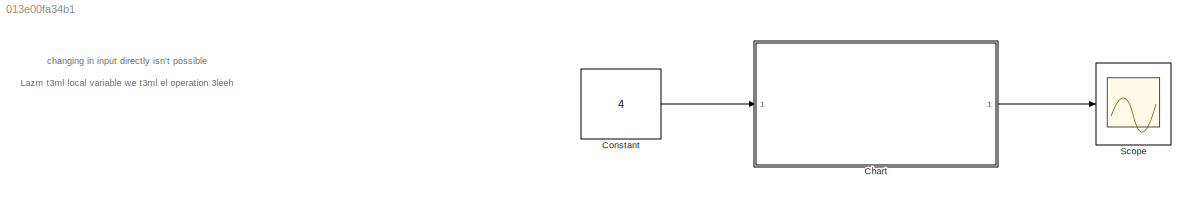
MODEL slx_013e00fa34b1
KIND model
CONFIG AbsTol = auto
CONFIG FixedStep = auto
CONFIG MaxStep = auto
CONFIG MinStep = auto
CONFIG RelTol = 1e-3
CONFIG SampleTimeConstraint = Unconstrained
CONFIG Solver = FixedStepDiscrete
CONFIG SolverMode = Auto
CONFIG SolverName = FixedStepDiscrete
CONFIG StartTime = 0.0
CONFIG StopTime = 10.0
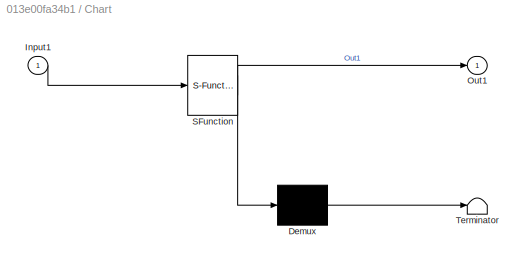
BLOCK [SubSystem] Chart
  ErrorFcn = Stateflow.Translate.translate
  PermitHierarchicalResolution = ExplicitOnly
  Ports = [1, 1]
  RequestExecContextInheritance = off
  SFBlockType = Chart
  TreatAsAtomicUnit = on
  Variant = off
BLOCK [Demux] Chart/ Demux 
  Outputs = 1
  Ports = [1, 1]
BLOCK [S-Function] Chart/ SFunction 
  EnableBusSupport = on
  FunctionName = sf_sfun
  PortCounts = [1 2]
  Ports = [1, 2]
  SFunctionDeploymentMode = off
  Tag = Stateflow S-Function chart_matlab 3
BLOCK [Terminator] Chart/ Terminator 
BLOCK [Inport] Chart/Input1
  IconDisplay = Port number
BLOCK [Outport] Chart/Out1
  IconDisplay = Port number
BLOCK [Constant] Constant
  OutDataTypeStr = uint8
  Value = 4
BLOCK [Scope] Scope
  Ports = [1]
  ScopeSpecificationString = Simulink.scopes.TimeScopeBlockCfg('CurrentConfiguration', extmgr.ConfigurationSet(extmgr.Configuration('Core','General UI',true),extmgr.Configuration('Core','Source UI',true),extmgr.Configuration('Sources','WiredSimulink',true),extmgr.Configuration('Visuals','Time Domain',true,'SerializedDisplays',{struct('MinYLimReal','0.9','MaxYLimReal','1.1','YLabelReal','','MinYLimMag','0.9','MaxYLimMag','1.1'...<+1291ch>
ANNOTATION (root): changing in input directly isn't possible Lazm t3ml local variable we t3ml el operation 3leeh
LINE Chart:1 -> Scope:1
LINE Constant:1 -> Chart:1
CHART Chart states=3 transitions=35
  STATE_LABEL "state is like the c's switch case"
  STATE_LABEL 'Do not put any code along\nthe transitions that run\ndown the right side!'
  STATE_LABEL 'Ay 7aga ma been [ ] 2smha transition condition;\n\nif the condition is valid it goes to the transition action\n'
